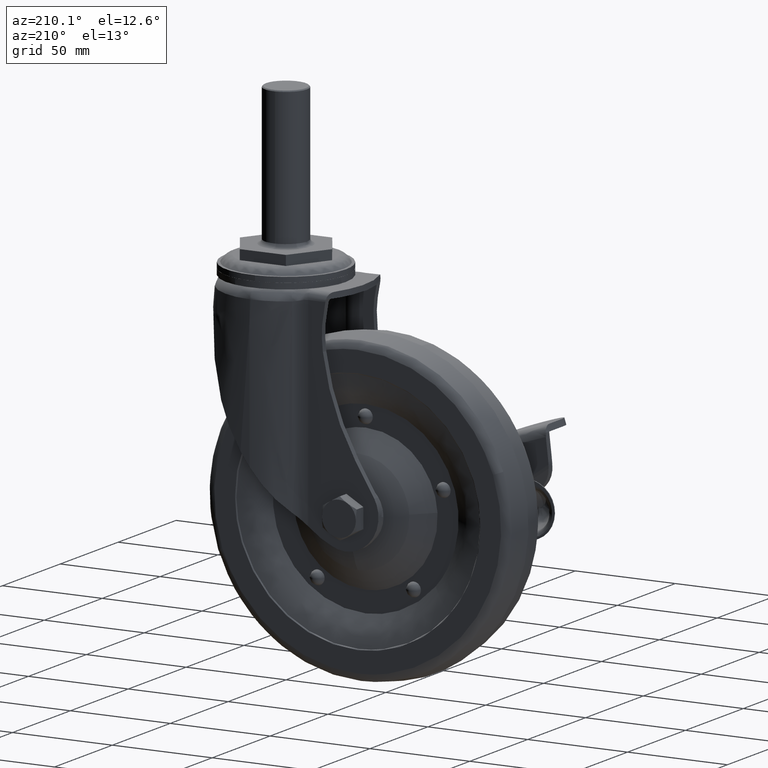
[diagram: clean part render]
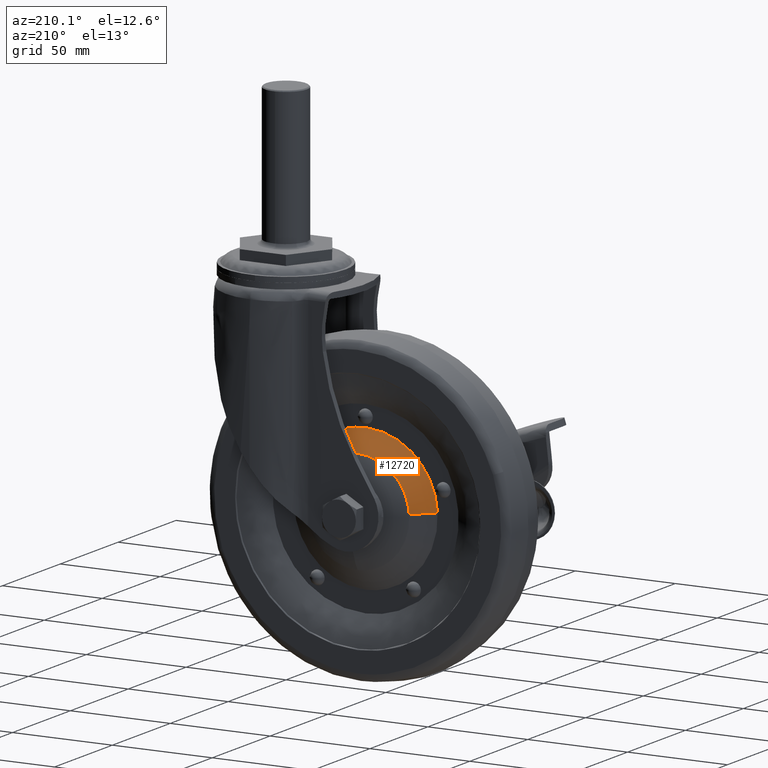
[diagram: same view with one face highlighted and labeled with its STEP entity id]
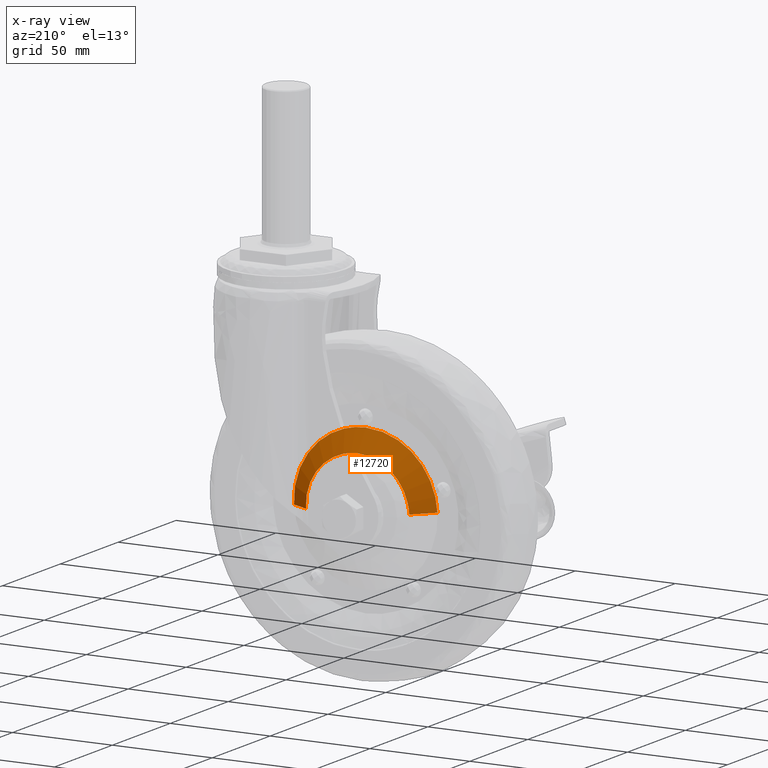
[diagram: x-ray of the same camera — body ghosted, the highlighted face saturated]
A machine part, auxiliary view. The second image highlights one B-rep face of the part: STEP entity #12720.
The next image is the same camera in x-ray: the body ghosted, the highlighted face saturated — about 0% of this face is hidden behind the body in this view.
In plain terms, the highlighted face is a freeform B-spline surface patch.
Its self-contained STEP definition (entity closure, byte-faithful):
#11819=CARTESIAN_POINT('',(-44.0,14.058723748943221,-80.683412177952377));
#11820=VERTEX_POINT('',#11819);
#11949=CARTESIAN_POINT('',(-69.868269780788978,14.058715142820679,-105.017828745642700));
#11950=VERTEX_POINT('',#11949);
#11966=CARTESIAN_POINT('',(-44.0,14.058723748943221,-80.683412177952377));
#11967=CARTESIAN_POINT('',(-68.379906530808341,14.058721526483422,-80.683412272928763));
#11968=CARTESIAN_POINT('',(-69.868269780788978,14.058715142820684,-105.017828745642630));
#11976=(BOUNDED_CURVE()B_SPLINE_CURVE(2,(#11966,#11967,#11968),.UNSPECIFIED.,.F.,.U.)B_SPLINE_CURVE_WITH_KNOTS((3,3),(0.500000000000000,0.739332912463353),.UNSPECIFIED.)CURVE()GEOMETRIC_REPRESENTATION_ITEM()RATIONAL_B_SPLINE_CURVE((1.0,0.719604051602441,0.976071934988176))REPRESENTATION_ITEM(''));
#11977=EDGE_CURVE('',#11820,#11950,#11976,.T.);
#12026=CARTESIAN_POINT('',(-18.131729447679199,14.058714601714620,-108.182171110811200));
#12027=VERTEX_POINT('',#12026);
#12028=CARTESIAN_POINT('',(-18.131729447679199,14.058714601714623,-108.182171110811200));
#12029=CARTESIAN_POINT('',(-18.083390010572330,14.058714800739947,-107.391827028936700));
#12030=CARTESIAN_POINT('',(-18.083389963128749,14.058715004044000,-106.600006051118000));
#12031=CARTESIAN_POINT('',(-18.083388410282986,14.058721658260847,-80.683412088607497));
#12032=CARTESIAN_POINT('',(-44.0,14.058723748943221,-80.683412177952377));
#12040=(BOUNDED_CURVE()B_SPLINE_CURVE(2,(#12028,#12029,#12030,#12031,#12032),.UNSPECIFIED.,.F.,.U.)B_SPLINE_CURVE_WITH_KNOTS((3,2,3),(0.239332996604261,0.250000000000000,0.500000000000000),.UNSPECIFIED.)CURVE()GEOMETRIC_REPRESENTATION_ITEM()RATIONAL_B_SPLINE_CURVE((0.976072115318147,0.987502828161312,1.0,0.707106781186547,1.0))REPRESENTATION_ITEM(''));
#12041=EDGE_CURVE('',#12027,#11820,#12040,.T.);
#12654=CARTESIAN_POINT('',(-18.383367050478700,14.235191842666801,-108.166780295258500));
#12655=CARTESIAN_POINT('',(-16.816586659852746,14.235191842666801,-82.550147345737216));
#12656=CARTESIAN_POINT('',(-42.433219609374042,14.235191842666801,-80.983366955111265));
#12657=CARTESIAN_POINT('',(-68.049852558895353,14.235191842666801,-79.416586564485314));
#12658=CARTESIAN_POINT('',(-69.616632949521303,14.235191842666801,-105.033219514006600));
#12659=CARTESIAN_POINT('',(-7.809241761971144,6.819120203933329,-108.813521503703100));
#12660=CARTESIAN_POINT('',(-5.595720162900569,6.819120203933329,-72.622763265674280));
#12661=CARTESIAN_POINT('',(-41.786478400929433,6.819120203933329,-70.409241666603720));
#12662=CARTESIAN_POINT('',(-77.977236638958288,6.819120203933329,-68.195720067533131));
#12663=CARTESIAN_POINT('',(-80.190758238028849,6.819120203933329,-104.386478305561990));
#12671=(BOUNDED_SURFACE()B_SPLINE_SURFACE(2,1,((#12654,#12659),(#12655,#12660),(#12656,#12661),(#12657,#12662),(#12658,#12663)),.UNSPECIFIED.,.F.,.F.,.U.)B_SPLINE_SURFACE_WITH_KNOTS((3,2,3),(2,2),(0.0,60.074863308879330,120.149726617758700),(0.0,12.931686601467829),.UNSPECIFIED.)GEOMETRIC_REPRESENTATION_ITEM()RATIONAL_B_SPLINE_SURFACE(((1.0,1.0),(0.707106781186548,0.707106781186548),(1.0,1.0),(0.707106781186548,0.707106781186548),(1.0,1.0)))REPRESENTATION_ITEM('')SURFACE());
#12672=ORIENTED_EDGE('',*,*,#12041,.T.);
#12673=ORIENTED_EDGE('',*,*,#11977,.T.);
#12674=CARTESIAN_POINT('',(-79.932852743208727,6.999999999973571,-104.402252481111200));
#12675=VERTEX_POINT('',#12674);
#12676=CARTESIAN_POINT('',(-69.868269780788978,14.058715142820679,-105.017828745642700));
#12677=CARTESIAN_POINT('',(-79.932852743208727,6.999999999973571,-104.402252481111200));
#12678=QUASI_UNIFORM_CURVE('',1,(#12676,#12677),.UNSPECIFIED.,.F.,.U.);
#12679=EDGE_CURVE('',#11950,#12675,#12678,.T.);
#12680=ORIENTED_EDGE('',*,*,#12679,.T.);
#12681=CARTESIAN_POINT('',(-44.0,7.0,-70.599999904632583));
#12682=VERTEX_POINT('',#12681);
#12683=CARTESIAN_POINT('',(-44.0,7.0,-70.599999904632583));
#12684=CARTESIAN_POINT('',(-77.865418408374396,6.999999999986785,-70.599999904631403));
#12685=CARTESIAN_POINT('',(-79.932852743208727,6.999999999973572,-104.402252481111160));
#12693=(BOUNDED_CURVE()B_SPLINE_CURVE(2,(#12683,#12684,#12685),.UNSPECIFIED.,.F.,.U.)B_SPLINE_CURVE_WITH_KNOTS((3,3),(0.500000000000000,0.739332962240700),.UNSPECIFIED.)CURVE()GEOMETRIC_REPRESENTATION_ITEM()RATIONAL_B_SPLINE_CURVE((1.0,0.719603993284652,0.976072041670483))REPRESENTATION_ITEM(''));
#12694=EDGE_CURVE('',#12682,#12675,#12693,.T.);
#12695=ORIENTED_EDGE('',*,*,#12694,.F.);
#12696=CARTESIAN_POINT('',(-8.067147256791266,6.999999999973570,-108.797747328153900));
#12697=VERTEX_POINT('',#12696);
#12698=CARTESIAN_POINT('',(-8.067147256791266,6.999999999973570,-108.797747328153900));
#12699=CARTESIAN_POINT('',(-7.999999999962868,6.999999999973950,-107.699899383516510));
#12700=CARTESIAN_POINT('',(-7.999999999963436,6.999999999974354,-106.599999904634800));
#12701=CARTESIAN_POINT('',(-7.999999999982279,6.999999999987569,-70.599999904633663));
#12702=CARTESIAN_POINT('',(-44.0,7.0,-70.599999904632583));
#12710=(BOUNDED_CURVE()B_SPLINE_CURVE(2,(#12698,#12699,#12700,#12701,#12702),.UNSPECIFIED.,.F.,.U.)B_SPLINE_CURVE_WITH_KNOTS((3,2,3),(0.239332962240700,0.250000000000000,0.500000000000000),.UNSPECIFIED.)CURVE()GEOMETRIC_REPRESENTATION_ITEM()RATIONAL_B_SPLINE_CURVE((0.976072041670483,0.987502787901896,1.0,0.707106781186547,1.0))REPRESENTATION_ITEM(''));
#12711=EDGE_CURVE('',#12697,#12682,#12710,.T.);
#12712=ORIENTED_EDGE('',*,*,#12711,.F.);
#12713=CARTESIAN_POINT('',(-18.131729447679199,14.058714601714620,-108.182171110811200));
#12714=CARTESIAN_POINT('',(-8.067147256791266,6.999999999973570,-108.797747328153900));
#12715=QUASI_UNIFORM_CURVE('',1,(#12713,#12714),.UNSPECIFIED.,.F.,.U.);
#12716=EDGE_CURVE('',#12027,#12697,#12715,.T.);
#12717=ORIENTED_EDGE('',*,*,#12716,.F.);
#12718=EDGE_LOOP('',(#12672,#12673,#12680,#12695,#12712,#12717));
#12719=FACE_OUTER_BOUND('',#12718,.T.);
#12720=ADVANCED_FACE('',(#12719),#12671,.T.);